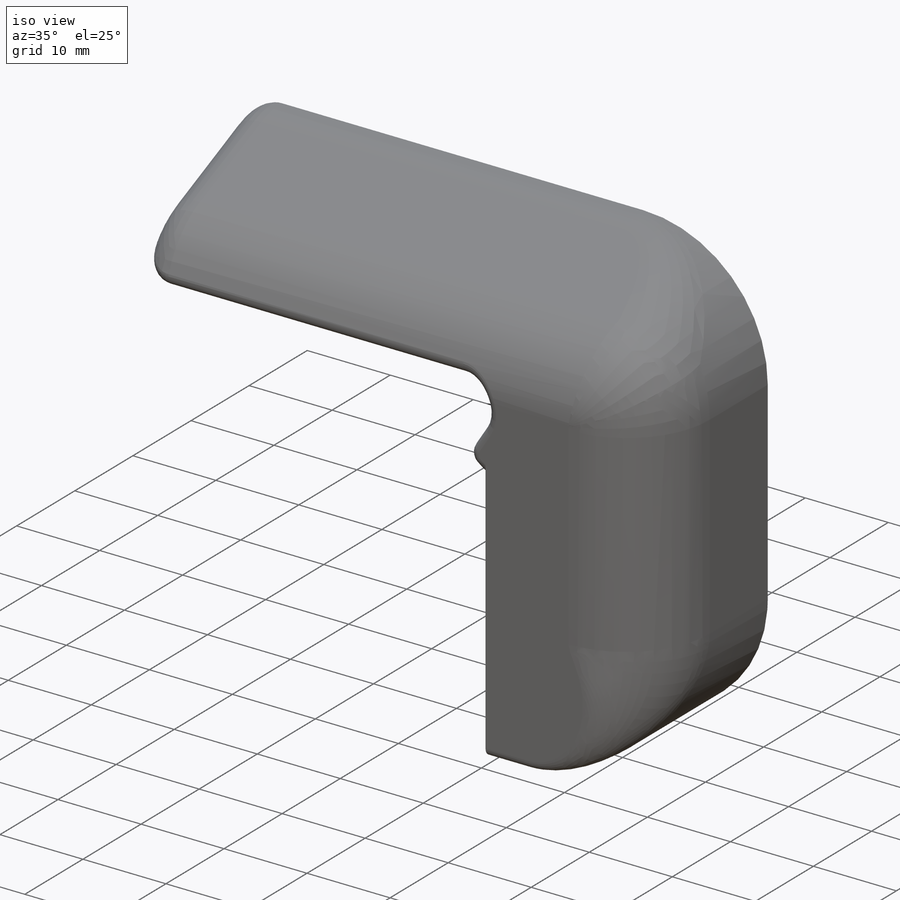
[diagram: iso view]
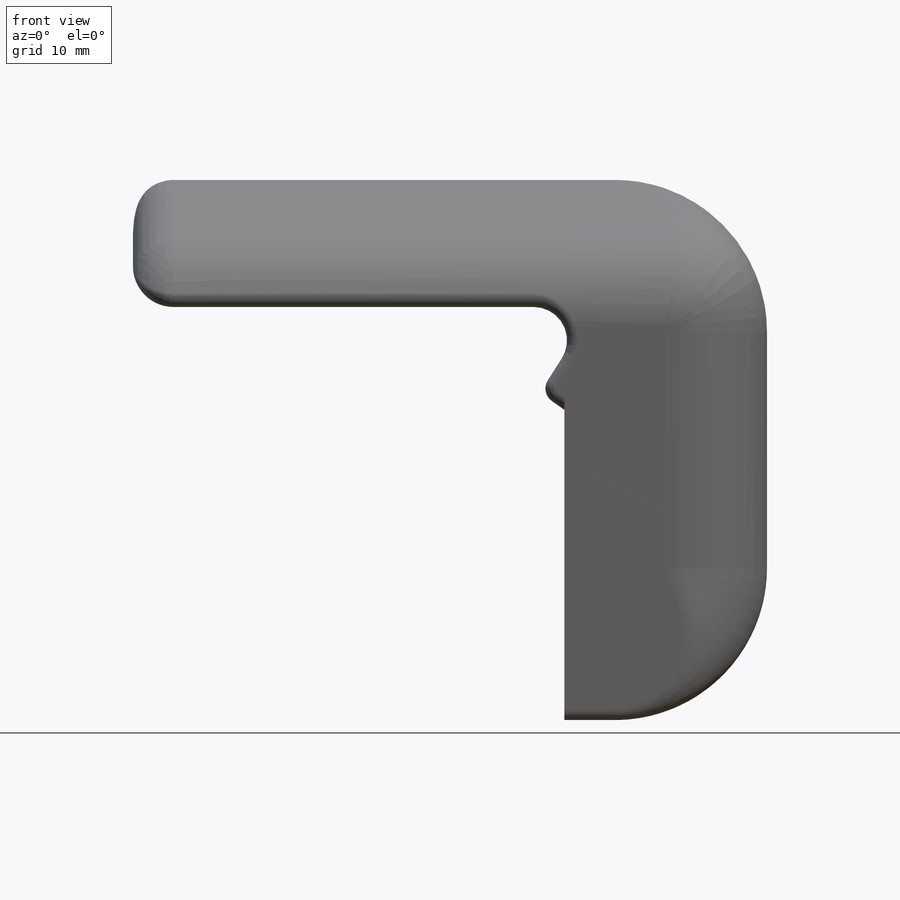
[diagram: front view]
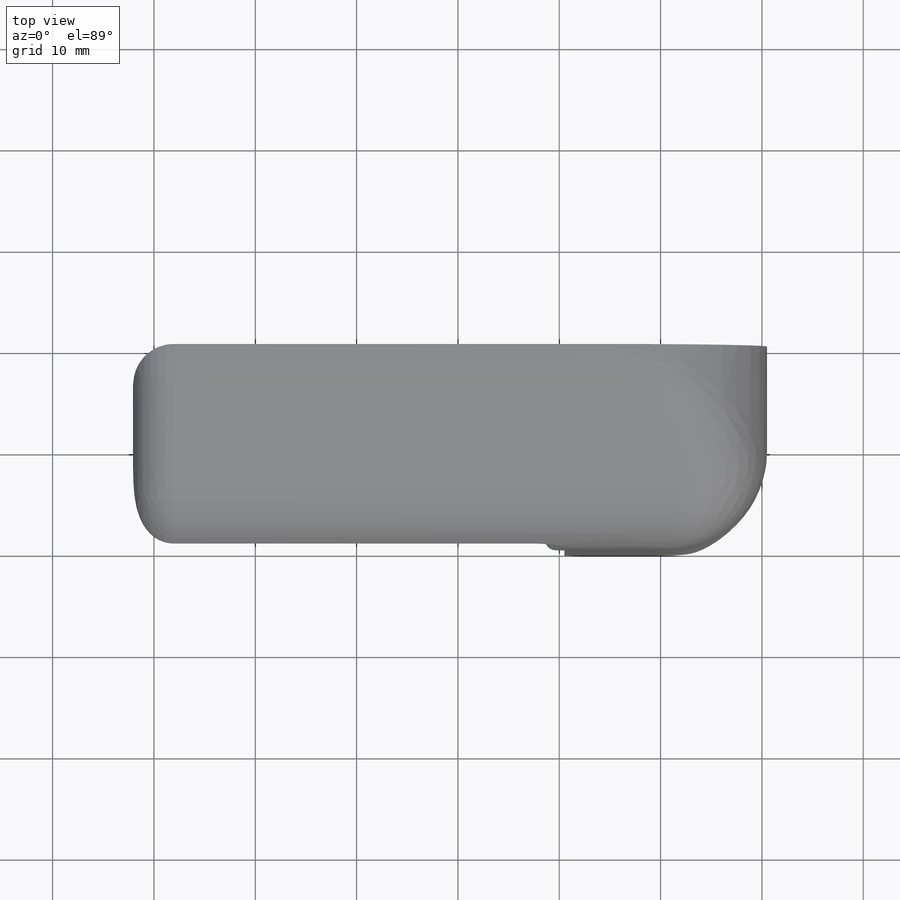
[diagram: top view]
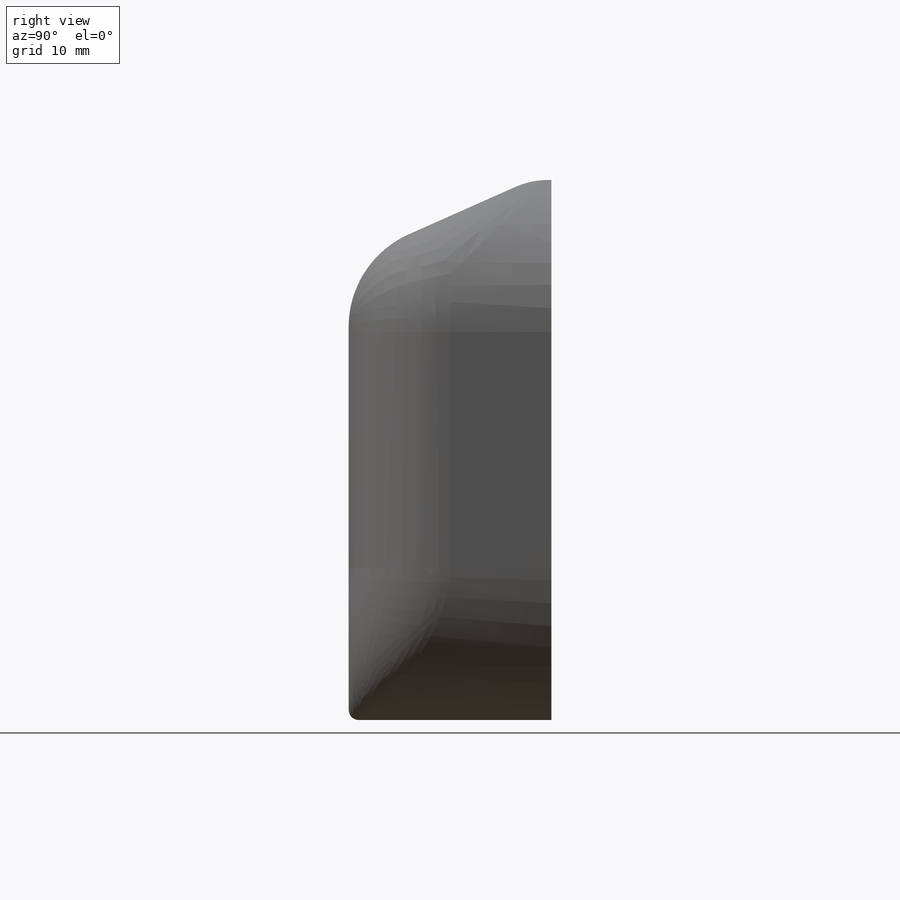
[diagram: right view]
SOLIDWORKS PART (.sldprt)
format: sldprt  version: not decoded by parser v0  size: 386,048 bytes
history: native  units: mm
features: sketch x3, fillet x3, cut_extrude x2, material x1, extrude x1, shell x1 (+13 scaffold rows collapsed)
feature tree (24):
  scaffold x13  (default folders/planes/origin — collapsed)
  material  "Material <not specified>"
  sketch  "Sketch1"  dims[c1.D2=15.0mm c1.D1=15.0mm c2.D2=20.0mm c2.D1=0.0mm]
  extrude  "Boss-Extrude1"  [1 undecoded]
  sketch  "Sketch2"  dims[D1=8.0mm D2=18.0mm]
  cut_extrude  "Cut-Extrude1"  [1 undecoded]
  fillet  "Fillet1"  Radius=8mm
  fillet  "Fillet2"  Radius=4mm
  fillet  "Fillet3"  Radius=1mm
  shell  "Shell1"  Thickness=1mm
  sketch  "Sketch3"  dims[D1=20.45mm D2=25.0mm D3=1.0mm D4=3.0mm]
  cut_extrude  "Cut-Extrude2"  Depth=1mm
decode coverage: 8 of 10 modeling features carry decoded parameters
note: 2 parameter values undecoded
note: suppression state not decoded; provenance and decode notes live in map.json
